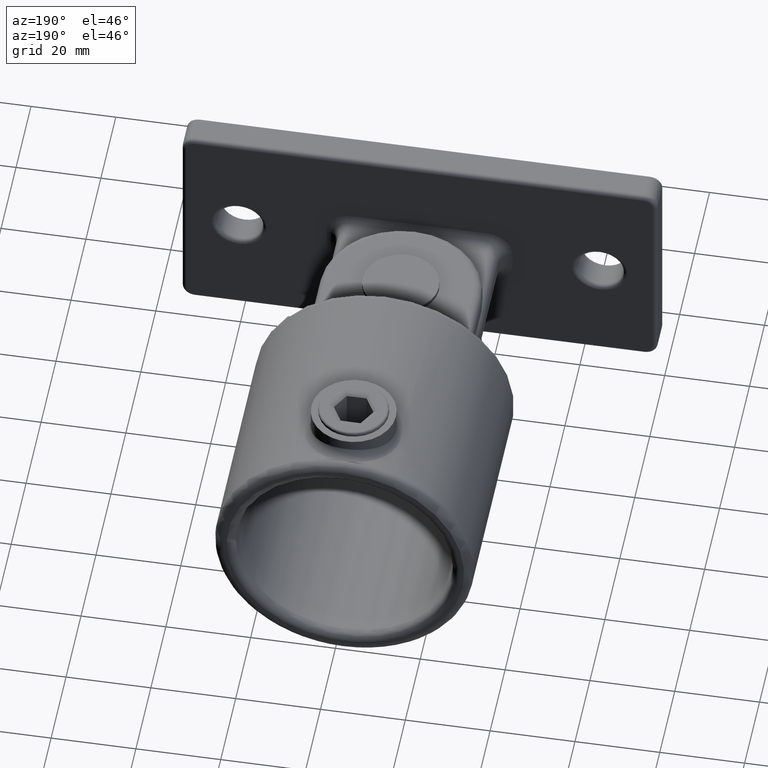
[diagram: clean part render]
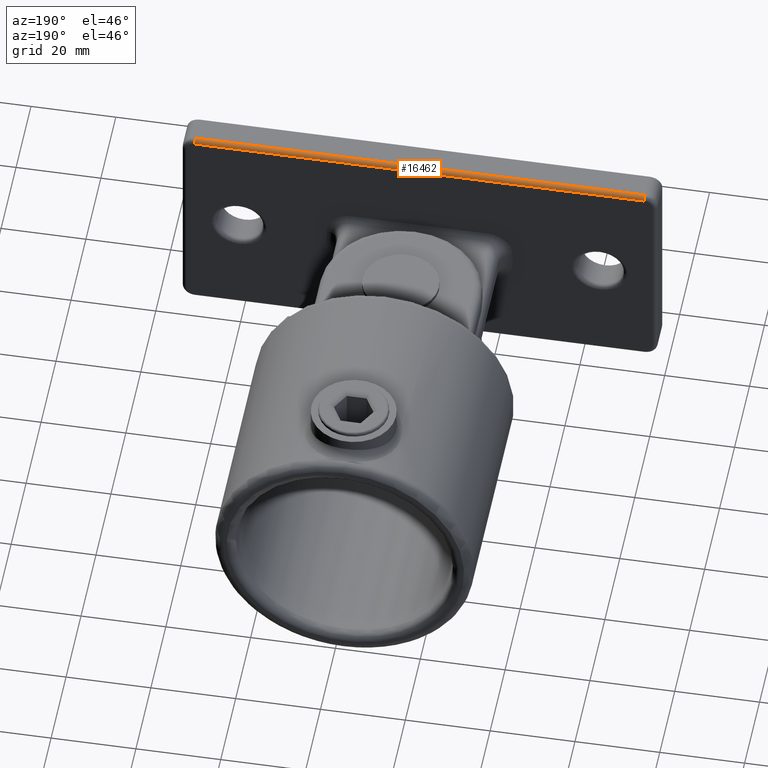
[diagram: same view with one face highlighted and labeled with its STEP entity id]
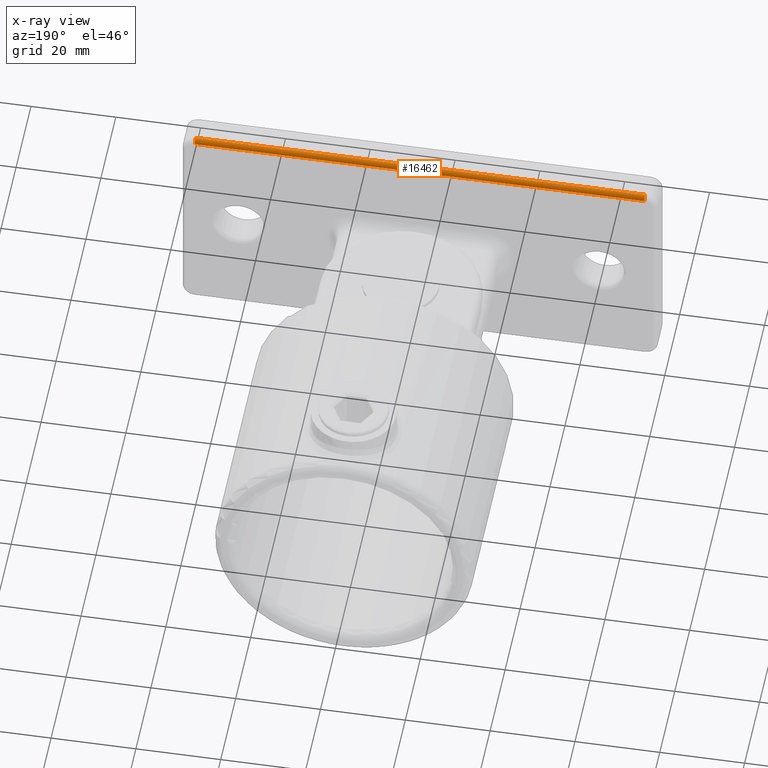
[diagram: x-ray of the same camera — body ghosted, the highlighted face saturated]
A machine part, auxiliary view. The second image highlights one B-rep face of the part: STEP entity #16462.
The next image is the same camera in x-ray: the body ghosted, the highlighted face saturated — about 0% of this face is hidden behind the body in this view.
In plain terms, the highlighted cylindrical surface (edge-blend (fillet) strip) has radius 1 mm, axis along (-1, 0, 0).
Its self-contained STEP definition (entity closure, byte-faithful):
#22 = DIRECTION ( 'NONE',  ( -1.000000000000000000, 0.000000000000000000, 0.000000000000000000 ) ) ;
#345 = CARTESIAN_POINT ( 'NONE',  ( 0.000000000000000000, 6.000000000000000000, 24.99999999999999289 ) ) ;
#458 = DIRECTION ( 'NONE',  ( -1.000000000000000000, 0.000000000000000000, 0.000000000000000000 ) ) ;
#693 = FACE_OUTER_BOUND ( 'NONE', #7087, .T. ) ;
#1746 = EDGE_CURVE ( 'NONE', #3307, #6948, #15073, .T. ) ;
#1889 = DIRECTION ( 'NONE',  ( -1.000000000000000000, 0.000000000000000000, 0.000000000000000000 ) ) ;
#1894 = ORIENTED_EDGE ( 'NONE', *, *, #12438, .F. ) ;
#2729 = VECTOR ( 'NONE', #11815, 1000.000000000000000 ) ;
#3151 = LINE ( 'NONE', #11634, #2729 ) ;
#3307 = VERTEX_POINT ( 'NONE', #4766 ) ;
#3550 = AXIS2_PLACEMENT_3D ( 'NONE', #4638, #458, #13915 ) ;
#4155 = ORIENTED_EDGE ( 'NONE', *, *, #16287, .F. ) ;
#4291 = ORIENTED_EDGE ( 'NONE', *, *, #10260, .F. ) ;
#4638 = CARTESIAN_POINT ( 'NONE',  ( -53.00000000000001421, 6.000000000000000000, 24.99999999999999289 ) ) ;
#4766 = CARTESIAN_POINT ( 'NONE',  ( 53.00000000000000000, 6.000000000000000000, 25.99999999999999645 ) ) ;
#5501 = CARTESIAN_POINT ( 'NONE',  ( 53.00000000000000000, 6.000000000000000000, 24.99999999999999289 ) ) ;
#5990 = DIRECTION ( 'NONE',  ( 0.000000000000000000, 0.000000000000000000, 1.000000000000000000 ) ) ;
#6087 = AXIS2_PLACEMENT_3D ( 'NONE', #345, #1889, #5990 ) ;
#6433 = CYLINDRICAL_SURFACE ( 'NONE', #6087, 1.000000000000000888 ) ;
#6735 = VERTEX_POINT ( 'NONE', #10724 ) ;
#6836 = DIRECTION ( 'NONE',  ( 0.000000000000000000, 0.000000000000000000, 1.000000000000000000 ) ) ;
#6948 = VERTEX_POINT ( 'NONE', #14492 ) ;
#7087 = EDGE_LOOP ( 'NONE', ( #16912, #4155, #4291, #1894 ) ) ;
#7294 = LINE ( 'NONE', #7873, #13115 ) ;
#7873 = CARTESIAN_POINT ( 'NONE',  ( 53.00000000000000000, 7.000000000000000000, 24.99999999999999289 ) ) ;
#10260 = EDGE_CURVE ( 'NONE', #6735, #14994, #14937, .T. ) ;
#10724 = CARTESIAN_POINT ( 'NONE',  ( -53.00000000000001421, 6.000000000000000000, 25.99999999999999645 ) ) ;
#11626 = AXIS2_PLACEMENT_3D ( 'NONE', #5501, #22, #6836 ) ;
#11634 = CARTESIAN_POINT ( 'NONE',  ( -53.00000000000001421, 6.000000000000000000, 25.99999999999999645 ) ) ;
#11815 = DIRECTION ( 'NONE',  ( -1.000000000000000000, -0.000000000000000000, -0.000000000000000000 ) ) ;
#11864 = CARTESIAN_POINT ( 'NONE',  ( -53.00000000000001421, 7.000000000000000000, 24.99999999999999289 ) ) ;
#12438 = EDGE_CURVE ( 'NONE', #3307, #6735, #3151, .T. ) ;
#13115 = VECTOR ( 'NONE', #13288, 1000.000000000000000 ) ;
#13288 = DIRECTION ( 'NONE',  ( 1.000000000000000000, -0.000000000000000000, 0.000000000000000000 ) ) ;
#13915 = DIRECTION ( 'NONE',  ( 0.000000000000000000, 0.000000000000000000, 1.000000000000000000 ) ) ;
#14492 = CARTESIAN_POINT ( 'NONE',  ( 53.00000000000000000, 7.000000000000000000, 24.99999999999999289 ) ) ;
#14937 = CIRCLE ( 'NONE', #3550, 1.000000000000000888 ) ;
#14994 = VERTEX_POINT ( 'NONE', #11864 ) ;
#15073 = CIRCLE ( 'NONE', #11626, 1.000000000000000888 ) ;
#16287 = EDGE_CURVE ( 'NONE', #14994, #6948, #7294, .T. ) ;
#16462 = ADVANCED_FACE ( 'NONE', ( #693 ), #6433, .T. ) ;
#16912 = ORIENTED_EDGE ( 'NONE', *, *, #1746, .T. ) ;